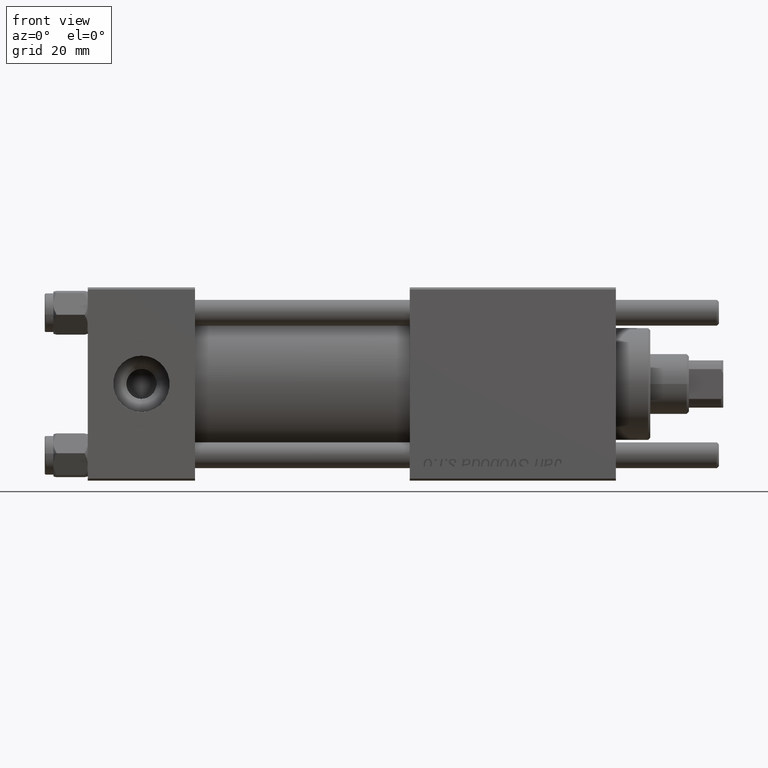
[diagram: clean part render]
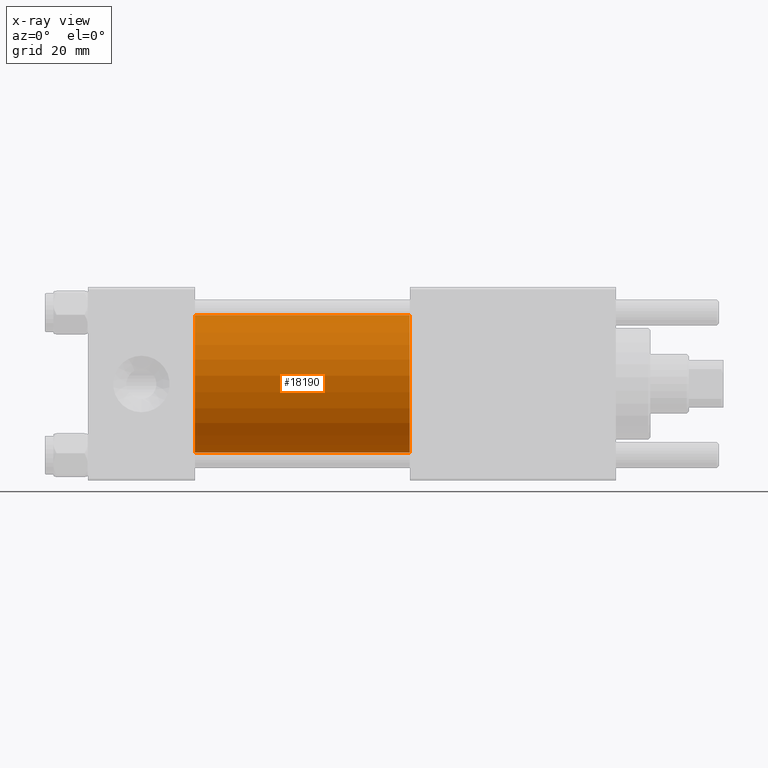
[diagram: x-ray — body ghosted, one internal face saturated and labeled with its STEP entity id]
A machine part, front view, then the same camera in x-ray: the body is ghosted and one INTERNAL B-rep face — a face not visible from any outside direction — is saturated and labeled: STEP entity #18190.
In plain terms, the highlighted cylindrical surface (partial cylindrical patch) has radius 16 mm, axis along (-1, -0, -0).
Its self-contained STEP definition (entity closure, byte-faithful):
#94 = ORIENTED_EDGE ( 'NONE', *, *, #33102, .T. ) ;
#808 = VERTEX_POINT ( 'NONE', #37152 ) ;
#1495 = DIRECTION ( 'NONE',  ( 1.000000000000000000, 0.000000000000000000, 0.000000000000000000 ) ) ;
#3358 = AXIS2_PLACEMENT_3D ( 'NONE', #21271, #25015, #52276 ) ;
#3533 = EDGE_CURVE ( 'NONE', #51735, #12982, #19005, .T. ) ;
#4455 = ORIENTED_EDGE ( 'NONE', *, *, #10980, .T. ) ;
#6673 = VERTEX_POINT ( 'NONE', #34487 ) ;
#9028 = CARTESIAN_POINT ( 'NONE',  ( 25.00000000000000000, -2.602085213965210642E-15, 16.00000000000000000 ) ) ;
#9072 = ORIENTED_EDGE ( 'NONE', *, *, #3533, .F. ) ;
#10658 = CARTESIAN_POINT ( 'NONE',  ( 75.00000000000001421, -6.426503353294456087E-16, -16.00000000000000000 ) ) ;
#10980 = EDGE_CURVE ( 'NONE', #51735, #808, #44858, .T. ) ;
#12255 = CARTESIAN_POINT ( 'NONE',  ( 75.00000000000001421, -2.602085213965210642E-15, 0.000000000000000000 ) ) ;
#12982 = VERTEX_POINT ( 'NONE', #9028 ) ;
#18190 = ADVANCED_FACE ( 'NONE', ( #38664 ), #50747, .F. ) ;
#19005 = LINE ( 'NONE', #40559, #51890 ) ;
#21271 = CARTESIAN_POINT ( 'NONE',  ( 25.00000000000000000, -2.602085213965210642E-15, 0.000000000000000000 ) ) ;
#25015 = DIRECTION ( 'NONE',  ( 1.000000000000000000, 0.000000000000000000, 0.000000000000000000 ) ) ;
#27062 = DIRECTION ( 'NONE',  ( -1.000000000000000000, -0.000000000000000000, -0.000000000000000000 ) ) ;
#29682 = EDGE_CURVE ( 'NONE', #12982, #6673, #52999, .T. ) ;
#30549 = CARTESIAN_POINT ( 'NONE',  ( 75.00000000000001421, -2.602085213965210642E-15, 16.00000000000000000 ) ) ;
#33102 = EDGE_CURVE ( 'NONE', #808, #6673, #33316, .T. ) ;
#33251 = EDGE_LOOP ( 'NONE', ( #4455, #94, #51327, #9072 ) ) ;
#33316 = LINE ( 'NONE', #10658, #40992 ) ;
#34275 = AXIS2_PLACEMENT_3D ( 'NONE', #12255, #51603, #42990 ) ;
#34487 = CARTESIAN_POINT ( 'NONE',  ( 25.00000000000000000, -6.426503353294456087E-16, -16.00000000000000000 ) ) ;
#36773 = DIRECTION ( 'NONE',  ( -1.000000000000000000, -0.000000000000000000, -0.000000000000000000 ) ) ;
#37152 = CARTESIAN_POINT ( 'NONE',  ( 75.00000000000001421, -6.426503353294456087E-16, -16.00000000000000000 ) ) ;
#38664 = FACE_OUTER_BOUND ( 'NONE', #33251, .T. ) ;
#40559 = CARTESIAN_POINT ( 'NONE',  ( 75.00000000000001421, -2.602085213965210642E-15, 16.00000000000000000 ) ) ;
#40992 = VECTOR ( 'NONE', #36773, 1000.000000000000000 ) ;
#42990 = DIRECTION ( 'NONE',  ( 0.000000000000000000, 0.000000000000000000, 1.000000000000000000 ) ) ;
#44858 = CIRCLE ( 'NONE', #52210, 16.00000000000000000 ) ;
#50747 = CYLINDRICAL_SURFACE ( 'NONE', #34275, 16.00000000000000000 ) ;
#51327 = ORIENTED_EDGE ( 'NONE', *, *, #29682, .F. ) ;
#51603 = DIRECTION ( 'NONE',  ( -1.000000000000000000, -0.000000000000000000, -0.000000000000000000 ) ) ;
#51735 = VERTEX_POINT ( 'NONE', #30549 ) ;
#51890 = VECTOR ( 'NONE', #27062, 1000.000000000000000 ) ;
#52210 = AXIS2_PLACEMENT_3D ( 'NONE', #53751, #1495, #53485 ) ;
#52276 = DIRECTION ( 'NONE',  ( 0.000000000000000000, 0.000000000000000000, -1.000000000000000000 ) ) ;
#52999 = CIRCLE ( 'NONE', #3358, 16.00000000000000000 ) ;
#53485 = DIRECTION ( 'NONE',  ( 0.000000000000000000, 0.000000000000000000, -1.000000000000000000 ) ) ;
#53751 = CARTESIAN_POINT ( 'NONE',  ( 75.00000000000001421, -2.602085213965210642E-15, 0.000000000000000000 ) ) ;